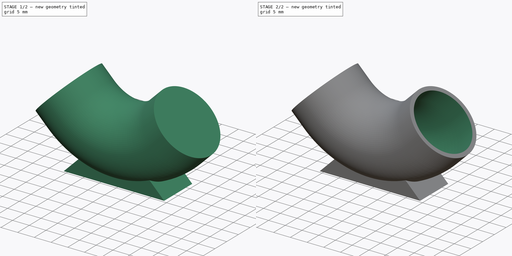
[diagram: build sequence overview — one tinted view per stage of 2, left to right]
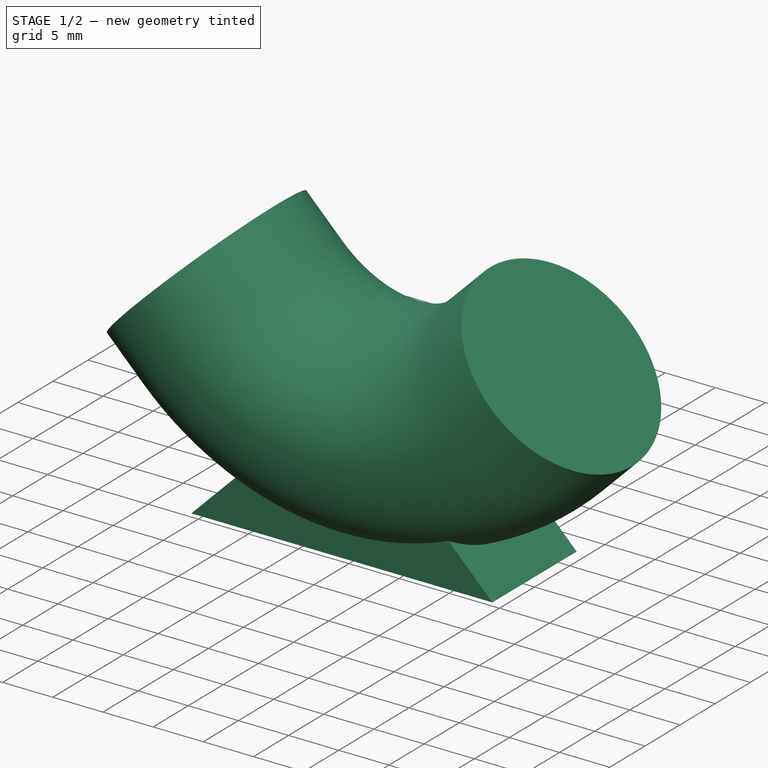
[diagram: stage 1 of 2 — iso view after this stage's code; geometry added in this stage tinted green]
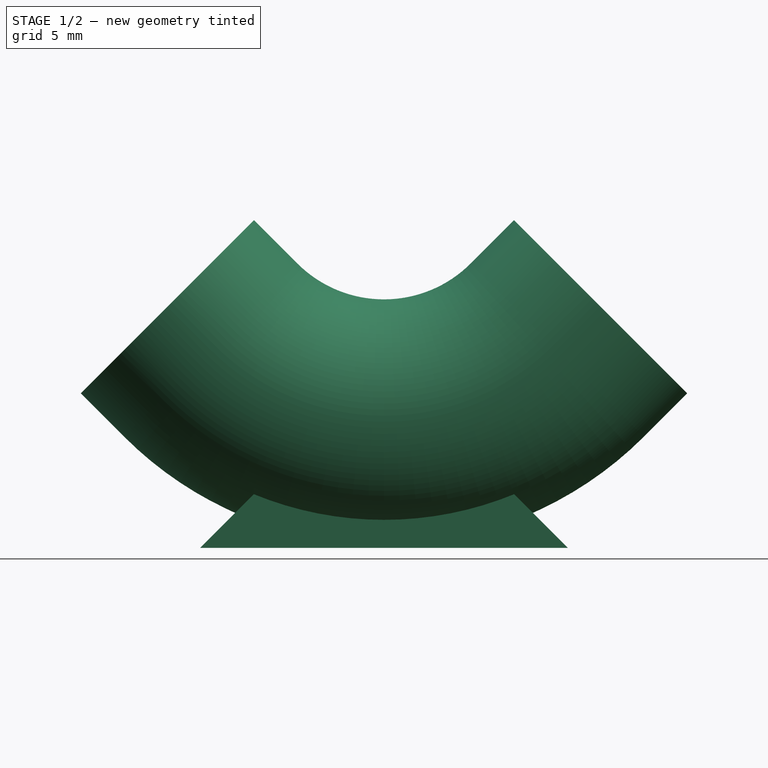
[diagram: stage 1 of 2 — front view after this stage's code; geometry added in this stage tinted green]
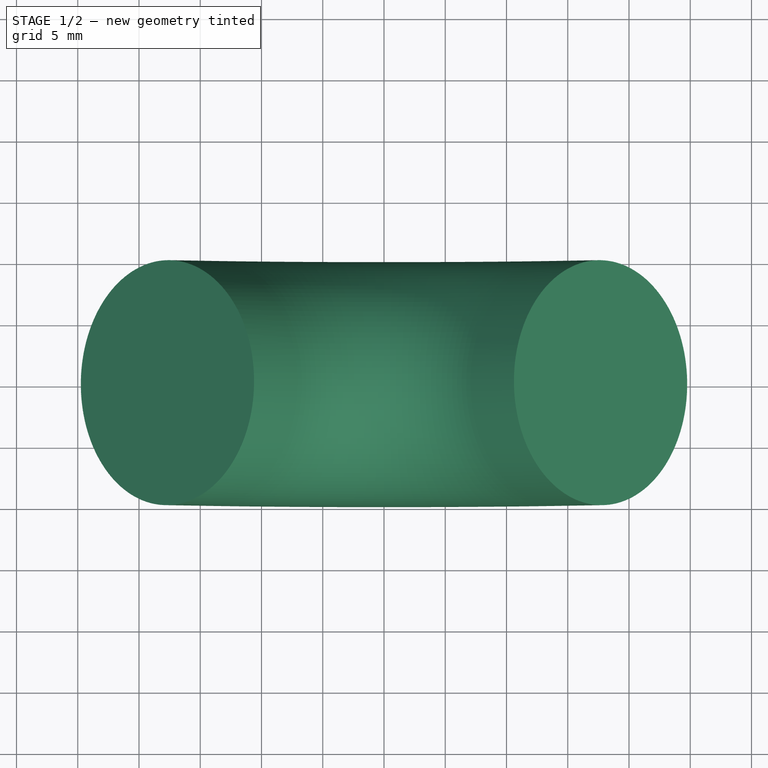
[diagram: stage 1 of 2 — top view after this stage's code; geometry added in this stage tinted green]
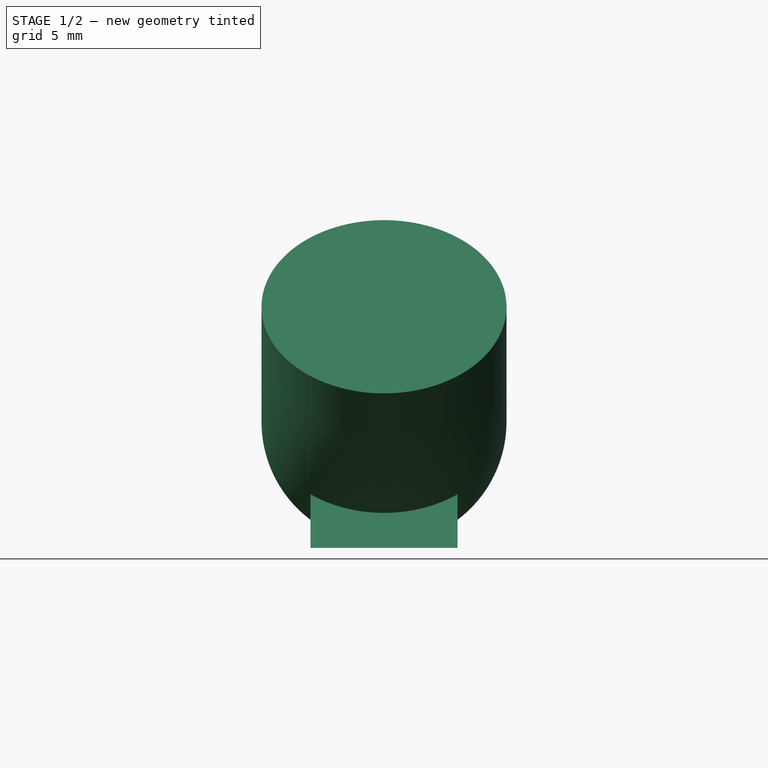
[diagram: stage 1 of 2 — right view after this stage's code; geometry added in this stage tinted green]
FCSTD DOCUMENT  (FreeCAD 0.21R33771 (Git))
Label: pipe_angled
License: All rights reserved
LicenseURL: http://en.wikipedia.org/wiki/All_rights_reserved
objects: Sketcher::SketchObject×6, PartDesign::Plane×5, Spreadsheet::Sheet×1, PartDesign::AdditivePipe×1, PartDesign::Pad×1, PartDesign::SubtractivePipe×1, PartDesign::Body×1
note: 18 computed .brp shape members not serialized (recipe doc carries the construction recipe); baked Part::Feature solids carry a one-line shape summary decoded from their .brp

FEATURE [Spreadsheet::Sheet] Spreadsheet  label="settings"
  cells = A1='pipe length; B1(pipe_len)=5; C1='Pedestal Z; D1(pedestal_Z)=15; A2='pipe angle; B2(pipe_ang)=90; C2='Pedestal Width; D2(pedestal_wid)=30; A3='pipe angle length; B3(pipe_ang_len)=20; C3='Pedestal Depth; D3(pedestal_dep)=12; A4='pipe diameter; B4(pipe_dia)=20; C4='pedestal start; D4(pedestal_start_Z)=13; A5='pipe wall thickness; B5(pipe_wall)=1.2; A9='Calculations; C9='centre sketch; A10='pipe face plane position; B10(pipe_face_plane_distance)==pipe_len + pipe_ang_len; C10='center positon; D10(center_sketch_Z)=30; A11='pipe face plane angle; B11(pipe_face_plane_angle)==pipe_ang / 2; A12='pipe front plane Z; B12(pipe_face_front_Z)==pipe_dia / 2; A13='pipe hollow dia; B13(pipe_hollow_dia)==pipe_dia - pipe_wall * 2
FEATURE [PartDesign::Plane] DatumPlane  label="left_angle_plane"
  AttachmentOffset = pos=(0,0,0) rot=(1,0,0;2.35619rad)
  Length = 62.6253
  MapMode = 5
  Placement = pos=(0,0,0) rot=(-0.678598,0.678598,-0.281085;2.59356rad)
  ResizeMode = 0
  Support = -> [YZ_Plane]
  Width = 92.3237
  expr: .AttachmentOffset.Base.z = 0
  expr: .AttachmentOffset.Rotation.Roll = 180 - <<settings>>.pipe_face_plane_angle
  expr: .AttachmentOffset.Rotation.Yaw = 0
FEATURE [PartDesign::Plane] DatumPlane001  label="right_angle_plane"
  AttachmentOffset = pos=(0,0,0) rot=(1,0,0;2.35619rad)
  Length = 62.6253
  MapMode = 5
  Placement = pos=(0,0,0) rot=(0.678598,0.678598,-0.281085;3.68962rad)
  ResizeMode = 0
  Support = -> [YZ_Plane]
  Width = 92.3237
  expr: .AttachmentOffset.Base.z = 0
  expr: .AttachmentOffset.Rotation.Roll = 180 - <<settings>>.pipe_face_plane_angle
FEATURE [PartDesign::Plane] DatumPlane002  label="pedestal_front_plane"
  AttachmentOffset = pos=(0,0,6) rot=(0,0,1;0rad)
  Length = 63.598
  MapMode = 5
  Placement = pos=(0,-6,-1.3e-15) rot=(1,0,0;1.5708rad)
  ResizeMode = 0
  Support = -> [XZ_Plane]
  Width = 71.598
  expr: .AttachmentOffset.Base.z = <<settings>>.pedestal_dep / 2
FEATURE [Sketcher::SketchObject] Sketch  label="pipe_path"
  FullyConstrained = true
  MapMode = 5
  Placement = pos=(0,0,0) rot=(1,0,0;1.5708rad)
  Support = -> [XZ_Plane]
  expr: Constraints[15] = <<settings>>.pipe_len
  expr: Constraints[8] = <<settings>>.pipe_ang_len
  sketch-geometry (7):
    g0: LineSegment StartX=0 StartY=0 StartZ=0 EndX=-14.1421 EndY=14.1421 EndZ=0
    g1: LineSegment StartX=-14.1421 StartY=14.1421 StartZ=0 EndX=0 EndY=28.2843 EndZ=0
    g2: LineSegment StartX=0 StartY=0 StartZ=0 EndX=14.1421 EndY=14.1421 EndZ=0
    g3: LineSegment StartX=14.1421 StartY=14.1421 StartZ=0 EndX=0 EndY=28.2843 EndZ=0
    g4: ArcOfCircle CenterX=-1e-16 CenterY=28.2843 CenterZ=0 NormalX=0 NormalY=0 NormalZ=1 AngleXU=0 Radius=20 StartAngle=3.92699 EndAngle=5.49779
    g5: LineSegment StartX=14.1421 StartY=14.1421 StartZ=0 EndX=17.6777 EndY=17.6777 EndZ=0
    g6: LineSegment StartX=-14.1421 StartY=14.1421 StartZ=0 EndX=-17.6777 EndY=17.6777 EndZ=0
  constraints (18):
    c: Coincident(g0,g-1)
    c: Coincident(g1,g0)
    c: Coincident(g2,g0)
    c: Coincident(g3,g2)
    c: Coincident(g3,g1)
    c: Symmetric(g2,g0,g-2)
    c: Angle(g2,g0) = 1.5708
    c: Equal(g0,g3)
    c: Distance(g2) = 20
    c: Coincident(g4,g1)
    c: Coincident(g4,g0)
    c: Coincident(g4,g2)
    c: Coincident(g5,g4)
    c: Coincident(g6,g4)
    c: Equal(g6,g5)
    c: Distance(g5) = 5
    c: Angle(g5,g3) = 1.5708
    c: Angle(g1,g6) = 1.5708
FEATURE [PartDesign::Plane] DatumPlane003  label="left_angle_face_plane"
  AttachmentOffset = pos=(0,0,25) rot=(0,0,1;0rad)
  Length = 62.6253
  MapMode = 5
  Placement = pos=(-17.6777,8.3e-15,17.6777) rot=(-0.357407,-0.357407,0.862856;1.71777rad)
  ResizeMode = 0
  Support = -> [DatumPlane]
  Width = 92.3237
  expr: .AttachmentOffset.Base.z = <<settings>>.pipe_face_plane_distance
FEATURE [PartDesign::Plane] DatumPlane004  label="right_angle_face_plane"
  AttachmentOffset = pos=(0,0,25) rot=(0,0,1;0rad)
  Length = 62.6253
  MapMode = 5
  Placement = pos=(17.6777,1.4e-15,17.6777) rot=(-0.357407,0.357407,-0.862856;1.71777rad)
  ResizeMode = 0
  Support = -> [DatumPlane001]
  Width = 92.3237
  expr: .AttachmentOffset.Base.z = <<settings>>.pipe_face_plane_distance
FEATURE [Sketcher::SketchObject] Sketch001  label="pipe_left_start"
  FullyConstrained = true
  MapMode = 5
  Placement = pos=(-17.6777,8.3e-15,17.6777) rot=(-0.357407,-0.357407,0.862856;1.71777rad)
  Support = -> [DatumPlane003]
  expr: Constraints[1] = <<settings>>.pipe_dia
  sketch-geometry (1):
    g0: Circle CenterX=0 CenterY=0 CenterZ=0 NormalX=0 NormalY=0 NormalZ=1 AngleXU=0 Radius=10
  constraints (2):
    c: Coincident(g0,g-1)
    c: Diameter(g0) = 20
FEATURE [Sketcher::SketchObject] Sketch002  label="pipe_right_end"
  FullyConstrained = true
  MapMode = 5
  Placement = pos=(17.6777,1.4e-15,17.6777) rot=(-0.357407,0.357407,-0.862856;1.71777rad)
  Support = -> [DatumPlane004]
  expr: Constraints[1] = <<settings>>.pipe_dia
  sketch-geometry (1):
    g0: Circle CenterX=0 CenterY=0 CenterZ=0 NormalX=0 NormalY=0 NormalZ=1 AngleXU=0 Radius=10
  constraints (2):
    c: Coincident(g0,g-1)
    c: Diameter(g0) = 20
FEATURE [PartDesign::AdditivePipe] AdditivePipe  label="pipe"
  AuxilleryCurvelinear = true
  AuxillerySpineTangent = false
  Binormal = (0,0,0)
  Mode = 0
  Placement = pos=(-17.6777,8.3e-15,17.6777) rot=(-0.357407,-0.357407,0.862856;1.71777rad)
  Profile = -> Sketch001
  Sections = -> [Sketch002]
  Spine = -> Sketch
  SpineTangent = false
  Transformation = 1
  Transition = 0
FEATURE [Sketcher::SketchObject] Sketch003
  FullyConstrained = true
  MapMode = 5
  Placement = pos=(0,-6,-1.3e-15) rot=(1,0,0;1.5708rad)
  Support = -> [DatumPlane002]
  expr: Constraints[12] = <<settings>>.pedestal_wid
  expr: Constraints[2] = <<settings>>.pedestal_start_Z
  expr: Constraints[5] = <<settings>>.pedestal_Z
  sketch-geometry (5):
    g0: LineSegment StartX=0 StartY=0 StartZ=0 EndX=0 EndY=13 EndZ=0
    g1: LineSegment StartX=0 StartY=13 StartZ=0 EndX=0 EndY=-2 EndZ=0
    g2: LineSegment StartX=-15 StartY=-2 StartZ=0 EndX=15 EndY=-2 EndZ=0
    g3: LineSegment StartX=15 StartY=-2 StartZ=0 EndX=0 EndY=13 EndZ=0
    g4: LineSegment StartX=-15 StartY=-2 StartZ=0 EndX=0 EndY=13 EndZ=0
  constraints (13):
    c: Coincident(g0,g-1)
    c: PointOnObject(g0,g-2)
    c: Distance(g0) = 13
    c: Coincident(g1,g0)
    c: PointOnObject(g1,g-2)
    c: Distance(g1) = 15
    c: Horizontal(g2)
    c: Coincident(g3,g2)
    c: Coincident(g4,g2)
    c: Coincident(g4,g3)
    c: Symmetric(g2,g2,g1)
    c: Coincident(g3,g0)
    c: Distance(g2) = 30
FEATURE [PartDesign::Pad] Pad  label="pedestal"
  BaseFeature = -> AdditivePipe
  Direction = (0,-1,-2e-16)
  Length = 12
  Length2 = 10
  Placement = pos=(-17.6777,8.3e-15,17.6777) rot=(-0.357407,-0.357407,0.862856;1.71777rad)
  Profile = -> Sketch003
  ReferenceAxis = -> Sketch003 [N_Axis]
  Reversed = true
  Type = 0
  expr: Length = <<settings>>.pedestal_dep
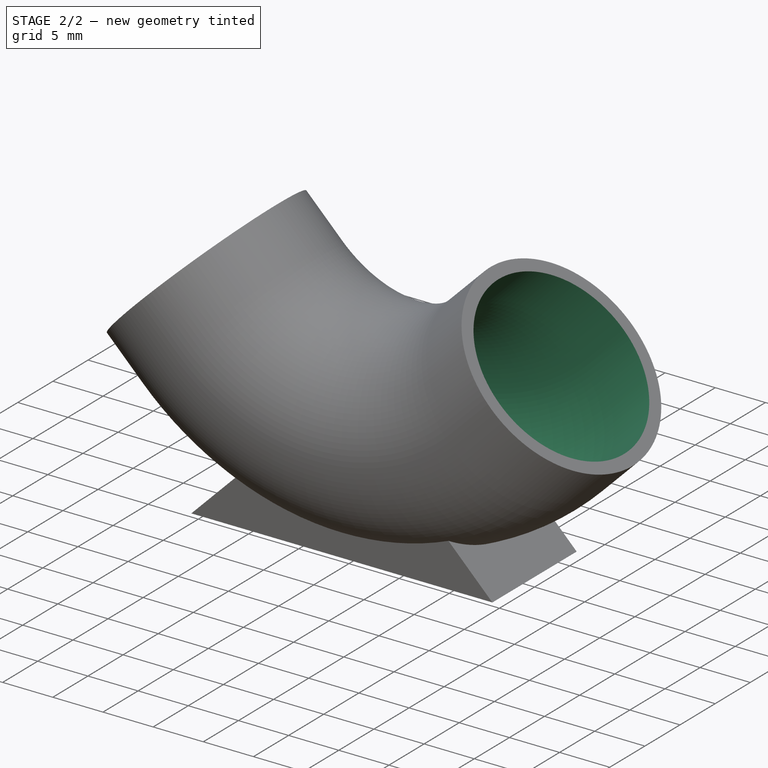
[diagram: stage 2 of 2 — iso view after this stage's code; geometry added in this stage tinted green]
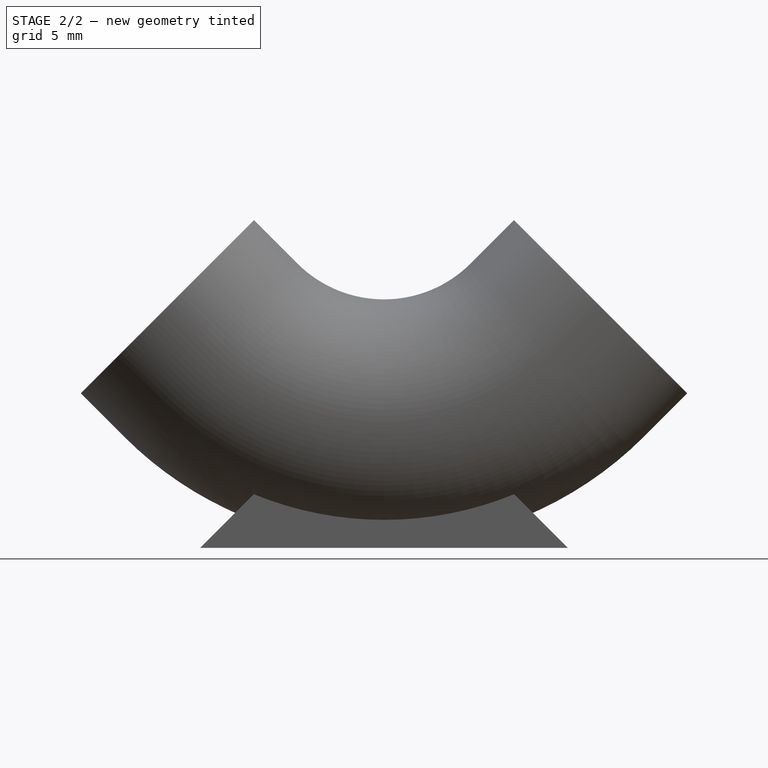
[diagram: stage 2 of 2 — front view after this stage's code; geometry added in this stage tinted green]
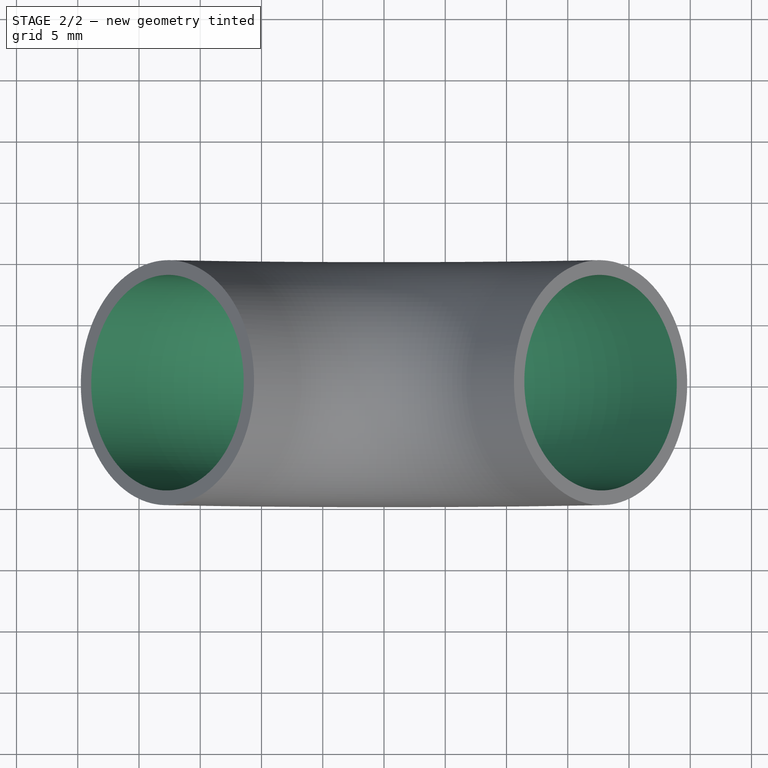
[diagram: stage 2 of 2 — top view after this stage's code; geometry added in this stage tinted green]
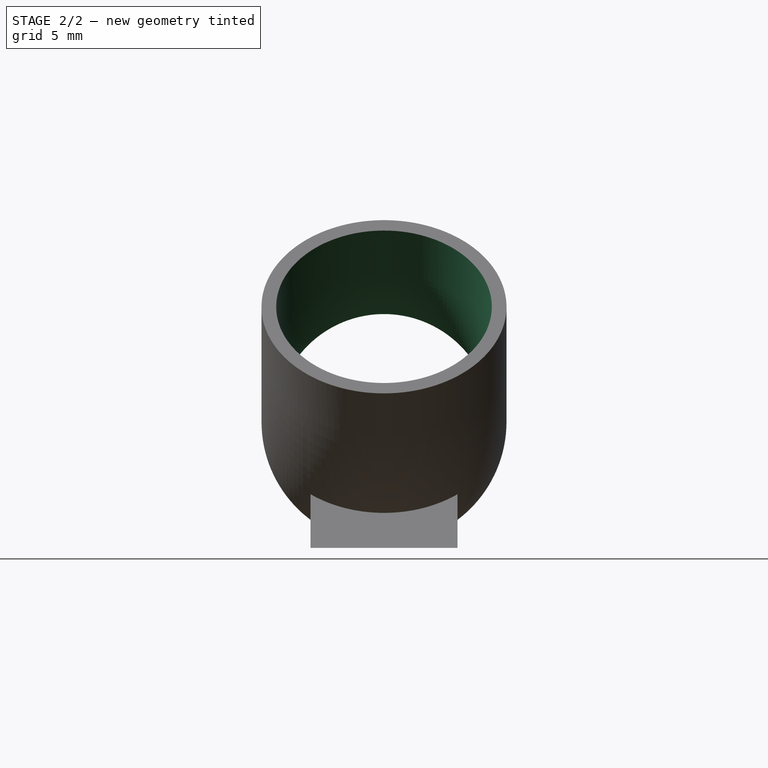
[diagram: stage 2 of 2 — right view after this stage's code; geometry added in this stage tinted green]
FEATURE [Sketcher::SketchObject] Sketch004  label="pipe_hollow_left_start"
  FullyConstrained = true
  MapMode = 5
  Placement = pos=(-17.6777,8.3e-15,17.6777) rot=(-0.357407,-0.357407,0.862856;1.71777rad)
  Support = -> [DatumPlane003]
  expr: Constraints[1] = <<settings>>.pipe_hollow_dia
  sketch-geometry (1):
    g0: Circle CenterX=0 CenterY=0 CenterZ=0 NormalX=0 NormalY=0 NormalZ=1 AngleXU=0 Radius=8.8
  constraints (2):
    c: Coincident(g0,g-1)
    c: Diameter(g0) = 17.6
FEATURE [Sketcher::SketchObject] Sketch005  label="pipe_hollow_right_start"
  FullyConstrained = true
  MapMode = 5
  Placement = pos=(17.6777,1.4e-15,17.6777) rot=(-0.357407,0.357407,-0.862856;1.71777rad)
  Support = -> [DatumPlane004]
  expr: Constraints[1] = <<settings>>.pipe_hollow_dia
  sketch-geometry (1):
    g0: Circle CenterX=0 CenterY=0 CenterZ=0 NormalX=0 NormalY=0 NormalZ=1 AngleXU=0 Radius=8.8
  constraints (2):
    c: Coincident(g0,g-1)
    c: Diameter(g0) = 17.6
FEATURE [PartDesign::SubtractivePipe] SubtractivePipe  label="pipe_hollow"
  AuxilleryCurvelinear = true
  AuxillerySpineTangent = false
  BaseFeature = -> Pad
  Binormal = (0,0,0)
  Mode = 0
  Placement = pos=(-17.6777,8.3e-15,17.6777) rot=(-0.357407,-0.357407,0.862856;1.71777rad)
  Profile = -> Sketch004
  Sections = -> [Sketch005]
  Spine = -> Sketch
  SpineTangent = false
  Transformation = 1
  Transition = 0
FEATURE [PartDesign::Body] Body
  Group = -> [DatumPlane,DatumPlane001,DatumPlane003,DatumPlane004,Sketch,Sketch001,Sketch002,AdditivePipe,DatumPlane002,Sketch003,Pad,Sketch004,Sketch005,SubtractivePipe]
  Origin = -> Origin
  Tip = -> SubtractivePipe
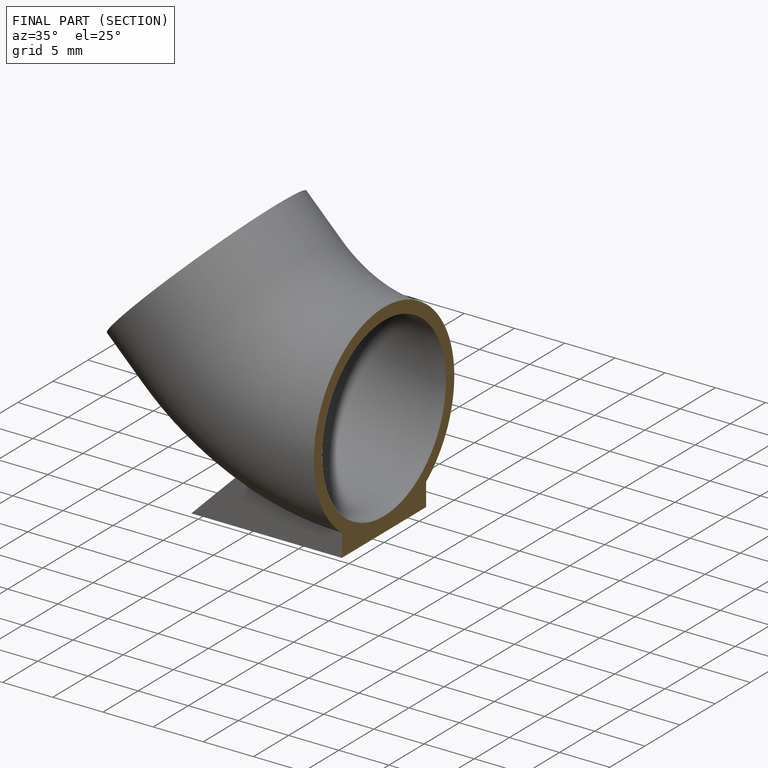
[diagram: finished part — half-section view (interior)]
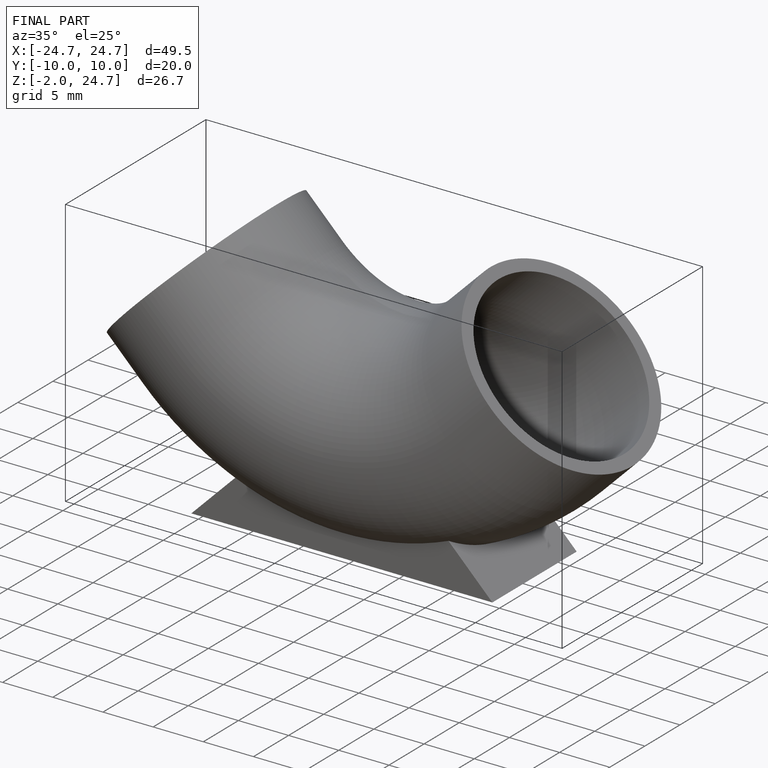
[diagram: finished part — iso view with bounding-box wireframe]
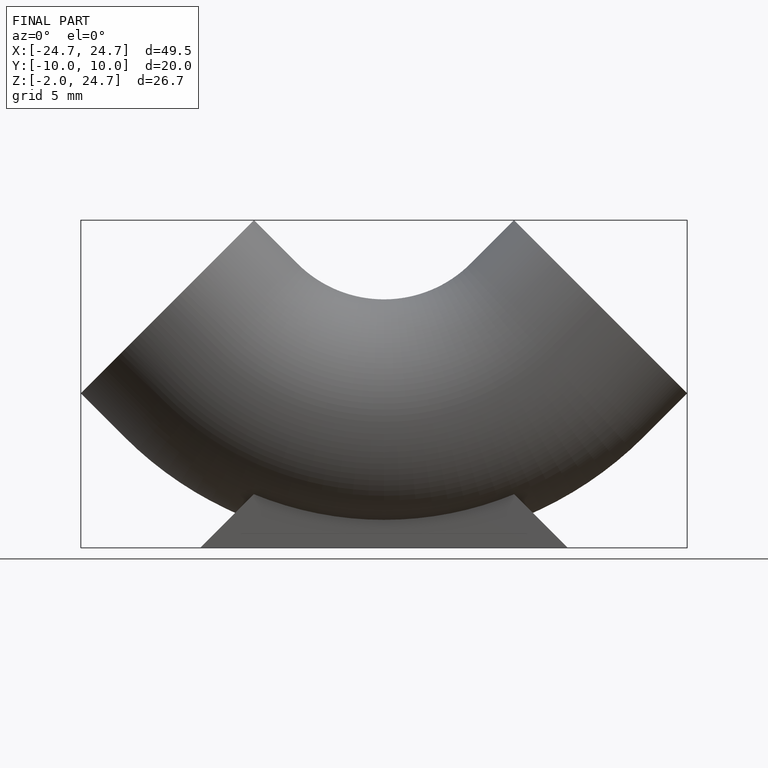
[diagram: finished part — front view with bounding-box wireframe]
